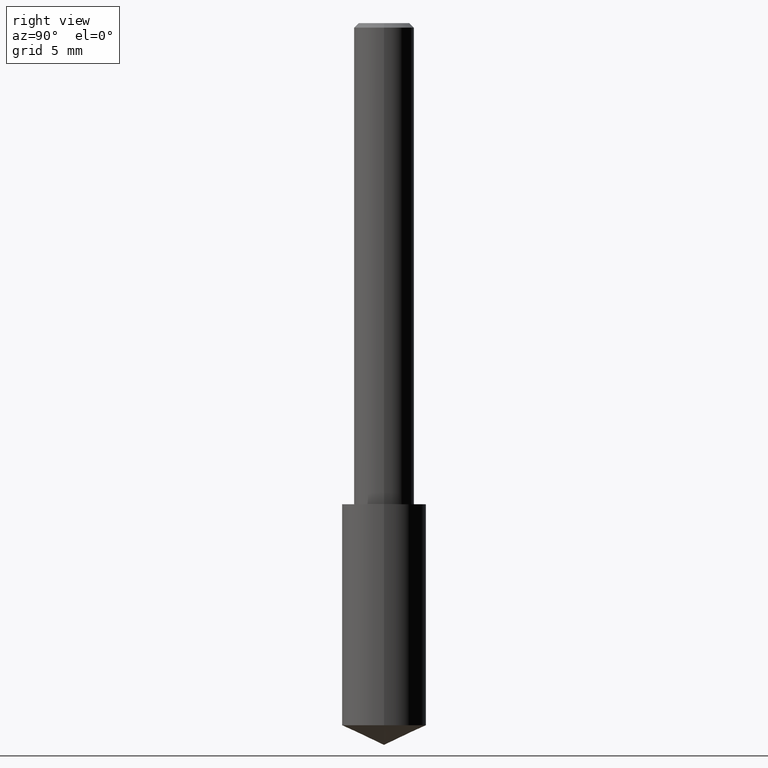
[diagram: clean part render]
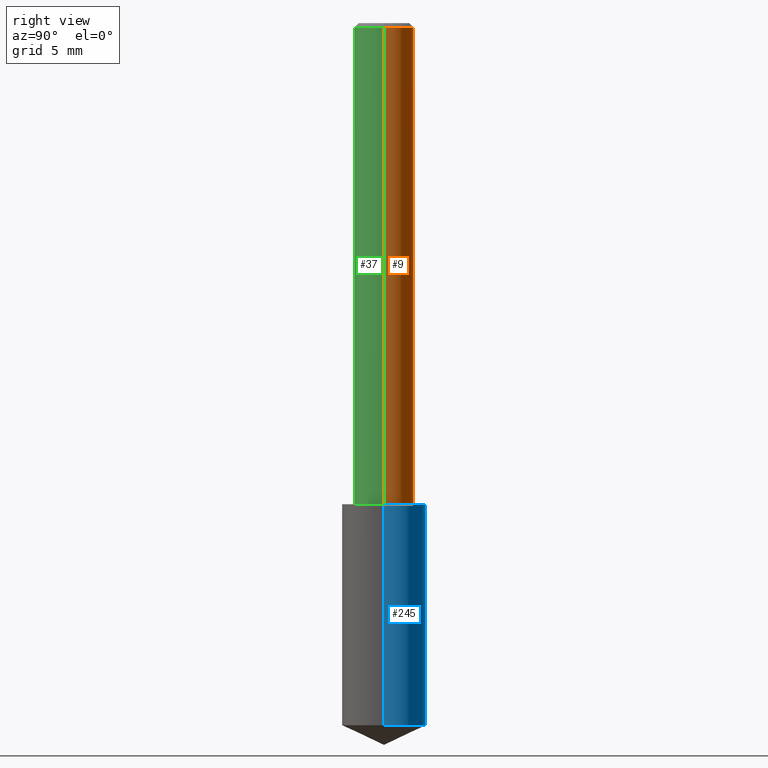
[diagram: same view with three faces highlighted in distinct colors, each labeled with its STEP entity id]
A machine part, right view with three faces highlighted in distinct colors.
Their STEP definitions:

[orange] entity #9 — the highlighted cylindrical surface (edge-blend (fillet) strip) has radius 1.5875 mm, axis along (-0, 0, 1).
#9 = ADVANCED_FACE ( 'NONE', ( #156 ), #109, .T. ) ;
#10 = ORIENTED_EDGE ( 'NONE', *, *, #300, .T. ) ;
#21 = CARTESIAN_POINT ( 'NONE',  ( 0.06250000000000006939, -4.364351673553921624E-16, 3.047610484872463374E-30 ) ) ;
#24 = EDGE_CURVE ( 'NONE', #59, #124, #248, .T. ) ;
#29 = DIRECTION ( 'NONE',  ( 1.000000000000000000, -6.982962677686266711E-15, 4.876176775795935793E-29 ) ) ;
#43 = LINE ( 'NONE', #21, #47 ) ;
#44 = DIRECTION ( 'NONE',  ( -2.445468806185136597E-29, 3.491481338843145583E-15, 1.000000000000000000 ) ) ;
#47 = VECTOR ( 'NONE', #147, 39.37007874015748143 ) ;
#59 = VERTEX_POINT ( 'NONE', #163 ) ;
#63 = ORIENTED_EDGE ( 'NONE', *, *, #24, .F. ) ;
#74 = EDGE_LOOP ( 'NONE', ( #10, #94, #63, #262 ) ) ;
#90 = VERTEX_POINT ( 'NONE', #227 ) ;
#92 = LINE ( 'NONE', #125, #95 ) ;
#94 = ORIENTED_EDGE ( 'NONE', *, *, #267, .T. ) ;
#95 = VECTOR ( 'NONE', #298, 39.37007874015748143 ) ;
#109 = CYLINDRICAL_SURFACE ( 'NONE', #217, 0.06250000000000006939 ) ;
#124 = VERTEX_POINT ( 'NONE', #229 ) ;
#125 = CARTESIAN_POINT ( 'NONE',  ( -0.06250000000000006939, 4.440892098500631092E-16, -3.074334431409319267E-30 ) ) ;
#147 = DIRECTION ( 'NONE',  ( -2.445468806185136877E-29, 3.491481338843145188E-15, 1.000000000000000000 ) ) ;
#155 = CARTESIAN_POINT ( 'NONE',  ( -0.06250000000000012490, -1.318017778347335489E-15, -1.000000000000000222 ) ) ;
#156 = FACE_OUTER_BOUND ( 'NONE', #74, .T. ) ;
#157 = CARTESIAN_POINT ( 'NONE',  ( 2.292627005798580623E-31, -3.273263755165470184E-17, -0.009375000000000060368 ) ) ;
#163 = CARTESIAN_POINT ( 'NONE',  ( 0.06250000000000000000, -4.691678049070463404E-16, -0.009375000000000060368 ) ) ;
#171 = DIRECTION ( 'NONE',  ( 1.000000000000000000, -6.982962677686264344E-15, 0.000000000000000000 ) ) ;
#184 = VERTEX_POINT ( 'NONE', #155 ) ;
#217 = AXIS2_PLACEMENT_3D ( 'NONE', #335, #277, #29 ) ;
#224 = EDGE_CURVE ( 'NONE', #90, #59, #43, .T. ) ;
#227 = CARTESIAN_POINT ( 'NONE',  ( 0.06250000000000012490, -3.927916506198539224E-15, -1.000000000000000222 ) ) ;
#229 = CARTESIAN_POINT ( 'NONE',  ( -0.06250000000000000000, -1.318017778347336672E-15, -0.009375000000000060368 ) ) ;
#232 = AXIS2_PLACEMENT_3D ( 'NONE', #269, #44, #171 ) ;
#240 = CIRCLE ( 'NONE', #232, 0.06250000000000012490 ) ;
#248 = CIRCLE ( 'NONE', #256, 0.06250000000000000000 ) ;
#256 = AXIS2_PLACEMENT_3D ( 'NONE', #157, #336, #340 ) ;
#262 = ORIENTED_EDGE ( 'NONE', *, *, #224, .F. ) ;
#267 = EDGE_CURVE ( 'NONE', #184, #124, #92, .T. ) ;
#269 = CARTESIAN_POINT ( 'NONE',  ( 2.445468806185137438E-29, -3.491481338843146371E-15, -1.000000000000000222 ) ) ;
#277 = DIRECTION ( 'NONE',  ( -2.445468806185136597E-29, 3.491481338843145583E-15, 1.000000000000000000 ) ) ;
#298 = DIRECTION ( 'NONE',  ( -2.445468806185136877E-29, 3.491481338843145188E-15, 1.000000000000000000 ) ) ;
#300 = EDGE_CURVE ( 'NONE', #90, #184, #240, .T. ) ;
#335 = CARTESIAN_POINT ( 'NONE',  ( 0.000000000000000000, 0.000000000000000000, 0.000000000000000000 ) ) ;
#336 = DIRECTION ( 'NONE',  ( -2.445468806185136597E-29, 3.491481338843145583E-15, 1.000000000000000000 ) ) ;
#340 = DIRECTION ( 'NONE',  ( 1.000000000000000000, -6.982962677686266711E-15, 0.000000000000000000 ) ) ;

[blue] entity #245 — the highlighted cylindrical surface (partial cylindrical patch) has radius 2.225 mm, axis along (-0, 0, 1).
#6 = EDGE_CURVE ( 'NONE', #238, #34, #187, .T. ) ;
#8 = CARTESIAN_POINT ( 'NONE',  ( 0.08759999999999999731, -4.103188869408462916E-15, -1.000000000000000222 ) ) ;
#17 = DIRECTION ( 'NONE',  ( -2.445468806185136877E-29, 3.491481338843145188E-15, 1.000000000000000000 ) ) ;
#18 = CARTESIAN_POINT ( 'NONE',  ( -0.08759999999999995568, -4.472164618712027230E-15, -1.459151449145622781 ) ) ;
#30 = VECTOR ( 'NONE', #17, 39.37007874015748143 ) ;
#34 = VERTEX_POINT ( 'NONE', #105 ) ;
#36 = AXIS2_PLACEMENT_3D ( 'NONE', #301, #97, #275 ) ;
#42 = EDGE_CURVE ( 'NONE', #126, #34, #115, .T. ) ;
#51 = EDGE_CURVE ( 'NONE', #219, #126, #161, .T. ) ;
#53 = AXIS2_PLACEMENT_3D ( 'NONE', #272, #132, #218 ) ;
#58 = DIRECTION ( 'NONE',  ( -2.445468806185136597E-29, 3.491481338843145583E-15, 1.000000000000000000 ) ) ;
#61 = ORIENTED_EDGE ( 'NONE', *, *, #42, .F. ) ;
#70 = CYLINDRICAL_SURFACE ( 'NONE', #36, 0.08759999999999999731 ) ;
#75 = VECTOR ( 'NONE', #210, 39.37007874015748143 ) ;
#88 = ORIENTED_EDGE ( 'NONE', *, *, #6, .T. ) ;
#97 = DIRECTION ( 'NONE',  ( -2.445468806185136597E-29, 3.491481338843145583E-15, 1.000000000000000000 ) ) ;
#98 = ORIENTED_EDGE ( 'NONE', *, *, #206, .T. ) ;
#105 = CARTESIAN_POINT ( 'NONE',  ( -0.08759999999999999731, -3.670605260514662288E-15, -1.000000000000000222 ) ) ;
#115 = CIRCLE ( 'NONE', #302, 0.08759999999999999731 ) ;
#126 = VERTEX_POINT ( 'NONE', #8 ) ;
#128 = FACE_OUTER_BOUND ( 'NONE', #334, .T. ) ;
#132 = DIRECTION ( 'NONE',  ( -2.445468806185136597E-29, 3.491481338843145583E-15, 1.000000000000000000 ) ) ;
#148 = CARTESIAN_POINT ( 'NONE',  ( -0.08759999999999999731, -2.869045902317298924E-15, -1.000000000000000222 ) ) ;
#161 = LINE ( 'NONE', #261, #75 ) ;
#167 = CIRCLE ( 'NONE', #53, 0.08759999999999999731 ) ;
#187 = LINE ( 'NONE', #148, #30 ) ;
#206 = EDGE_CURVE ( 'NONE', #219, #238, #167, .T. ) ;
#210 = DIRECTION ( 'NONE',  ( -2.445468806185136877E-29, 3.491481338843145188E-15, 1.000000000000000000 ) ) ;
#218 = DIRECTION ( 'NONE',  ( 1.000000000000000000, -6.982962677686269077E-15, 0.000000000000000000 ) ) ;
#219 = VERTEX_POINT ( 'NONE', #327 ) ;
#221 = ORIENTED_EDGE ( 'NONE', *, *, #51, .F. ) ;
#238 = VERTEX_POINT ( 'NONE', #18 ) ;
#245 = ADVANCED_FACE ( 'NONE', ( #128 ), #70, .T. ) ;
#261 = CARTESIAN_POINT ( 'NONE',  ( 0.08759999999999999731, -4.103188869408462916E-15, -1.000000000000000222 ) ) ;
#272 = CARTESIAN_POINT ( 'NONE',  ( 3.568309352385458231E-29, -5.094600055237875073E-15, -1.459151449145622781 ) ) ;
#275 = DIRECTION ( 'NONE',  ( 1.000000000000000000, -6.982962677686263555E-15, 0.000000000000000000 ) ) ;
#291 = DIRECTION ( 'NONE',  ( 1.000000000000000000, -6.982962677686269077E-15, 0.000000000000000000 ) ) ;
#301 = CARTESIAN_POINT ( 'NONE',  ( 2.445468806185137438E-29, -3.491481338843146371E-15, -1.000000000000000222 ) ) ;
#302 = AXIS2_PLACEMENT_3D ( 'NONE', #313, #58, #291 ) ;
#313 = CARTESIAN_POINT ( 'NONE',  ( 2.445468806185136877E-29, -3.491481338843145977E-15, -1.000000000000000222 ) ) ;
#327 = CARTESIAN_POINT ( 'NONE',  ( 0.08759999999999995568, -5.706307585803191222E-15, -1.459151449145622781 ) ) ;
#334 = EDGE_LOOP ( 'NONE', ( #98, #88, #61, #221 ) ) ;

[green] entity #37 — the highlighted cylindrical surface (edge-blend (fillet) strip) has radius 1.5875 mm, axis along (-0, 0, 1).
#13 = CIRCLE ( 'NONE', #236, 0.06250000000000000000 ) ;
#20 = ORIENTED_EDGE ( 'NONE', *, *, #185, .T. ) ;
#21 = CARTESIAN_POINT ( 'NONE',  ( 0.06250000000000006939, -4.364351673553921624E-16, 3.047610484872463374E-30 ) ) ;
#25 = AXIS2_PLACEMENT_3D ( 'NONE', #91, #143, #315 ) ;
#37 = ADVANCED_FACE ( 'NONE', ( #78 ), #320, .T. ) ;
#41 = ORIENTED_EDGE ( 'NONE', *, *, #101, .F. ) ;
#43 = LINE ( 'NONE', #21, #47 ) ;
#47 = VECTOR ( 'NONE', #147, 39.37007874015748143 ) ;
#56 = CARTESIAN_POINT ( 'NONE',  ( 2.292627005798580623E-31, -3.273263755165470184E-17, -0.009375000000000060368 ) ) ;
#59 = VERTEX_POINT ( 'NONE', #163 ) ;
#78 = FACE_OUTER_BOUND ( 'NONE', #183, .T. ) ;
#90 = VERTEX_POINT ( 'NONE', #227 ) ;
#91 = CARTESIAN_POINT ( 'NONE',  ( 0.000000000000000000, 0.000000000000000000, 0.000000000000000000 ) ) ;
#92 = LINE ( 'NONE', #125, #95 ) ;
#95 = VECTOR ( 'NONE', #298, 39.37007874015748143 ) ;
#99 = ORIENTED_EDGE ( 'NONE', *, *, #267, .F. ) ;
#101 = EDGE_CURVE ( 'NONE', #124, #59, #13, .T. ) ;
#124 = VERTEX_POINT ( 'NONE', #229 ) ;
#125 = CARTESIAN_POINT ( 'NONE',  ( -0.06250000000000006939, 4.440892098500631092E-16, -3.074334431409319267E-30 ) ) ;
#143 = DIRECTION ( 'NONE',  ( -2.445468806185136597E-29, 3.491481338843145583E-15, 1.000000000000000000 ) ) ;
#147 = DIRECTION ( 'NONE',  ( -2.445468806185136877E-29, 3.491481338843145188E-15, 1.000000000000000000 ) ) ;
#155 = CARTESIAN_POINT ( 'NONE',  ( -0.06250000000000012490, -1.318017778347335489E-15, -1.000000000000000222 ) ) ;
#158 = CARTESIAN_POINT ( 'NONE',  ( 2.445468806185137438E-29, -3.491481338843146371E-15, -1.000000000000000222 ) ) ;
#160 = DIRECTION ( 'NONE',  ( -2.445468806185136597E-29, 3.491481338843145583E-15, 1.000000000000000000 ) ) ;
#163 = CARTESIAN_POINT ( 'NONE',  ( 0.06250000000000000000, -4.691678049070463404E-16, -0.009375000000000060368 ) ) ;
#172 = CIRCLE ( 'NONE', #228, 0.06250000000000012490 ) ;
#175 = DIRECTION ( 'NONE',  ( -2.445468806185136597E-29, 3.491481338843145583E-15, 1.000000000000000000 ) ) ;
#183 = EDGE_LOOP ( 'NONE', ( #99, #20, #323, #41 ) ) ;
#184 = VERTEX_POINT ( 'NONE', #155 ) ;
#185 = EDGE_CURVE ( 'NONE', #184, #90, #172, .T. ) ;
#202 = DIRECTION ( 'NONE',  ( 1.000000000000000000, -6.982962677686266711E-15, 0.000000000000000000 ) ) ;
#224 = EDGE_CURVE ( 'NONE', #90, #59, #43, .T. ) ;
#227 = CARTESIAN_POINT ( 'NONE',  ( 0.06250000000000012490, -3.927916506198539224E-15, -1.000000000000000222 ) ) ;
#228 = AXIS2_PLACEMENT_3D ( 'NONE', #158, #175, #280 ) ;
#229 = CARTESIAN_POINT ( 'NONE',  ( -0.06250000000000000000, -1.318017778347336672E-15, -0.009375000000000060368 ) ) ;
#236 = AXIS2_PLACEMENT_3D ( 'NONE', #56, #160, #202 ) ;
#267 = EDGE_CURVE ( 'NONE', #184, #124, #92, .T. ) ;
#280 = DIRECTION ( 'NONE',  ( 1.000000000000000000, -6.982962677686264344E-15, 0.000000000000000000 ) ) ;
#298 = DIRECTION ( 'NONE',  ( -2.445468806185136877E-29, 3.491481338843145188E-15, 1.000000000000000000 ) ) ;
#315 = DIRECTION ( 'NONE',  ( 1.000000000000000000, -6.982962677686266711E-15, 4.876176775795935793E-29 ) ) ;
#320 = CYLINDRICAL_SURFACE ( 'NONE', #25, 0.06250000000000006939 ) ;
#323 = ORIENTED_EDGE ( 'NONE', *, *, #224, .T. ) ;